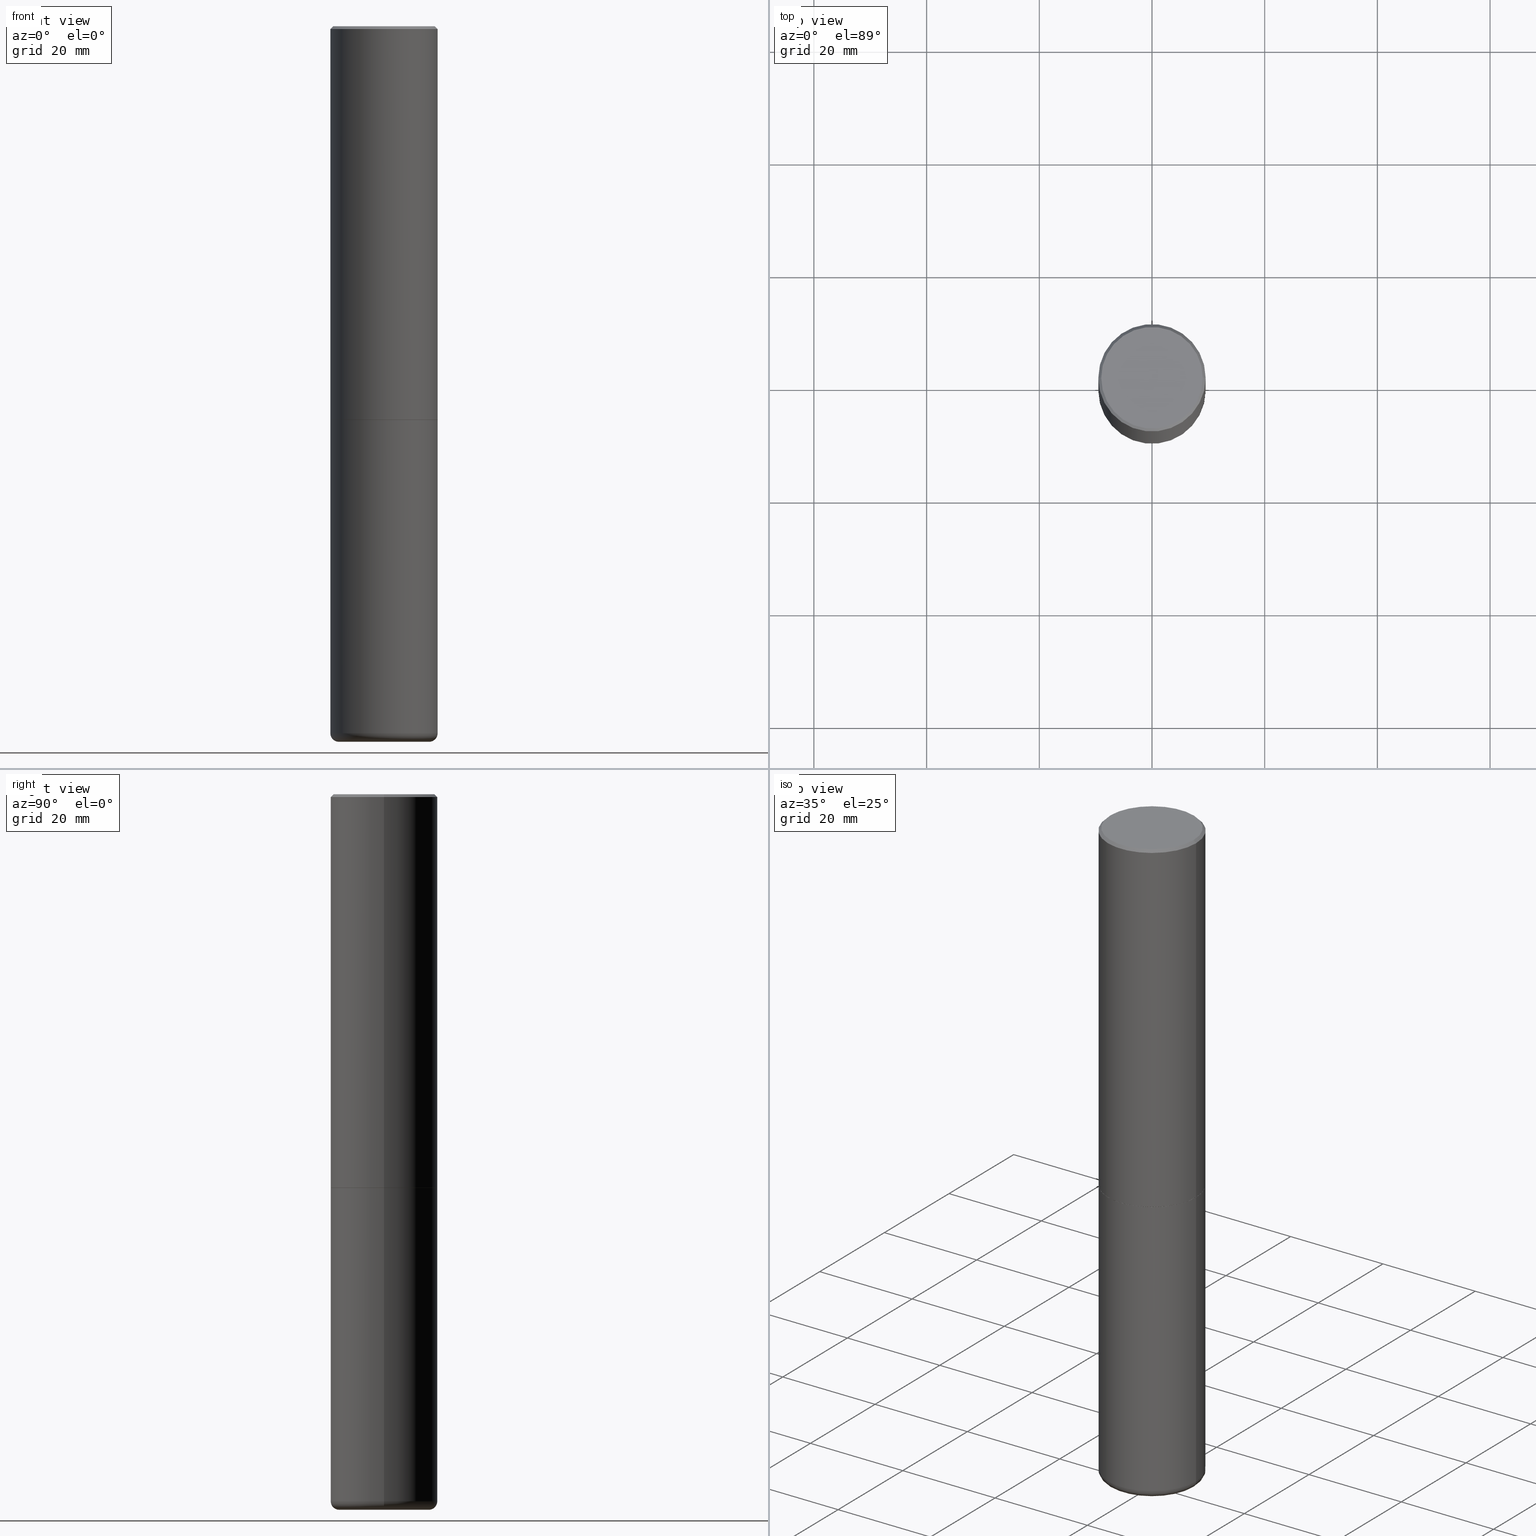
[diagram: canonical four-view strip — front | top / right | iso, engineering-drawing reading convention]
A machine part, canonical four-view strip (front | top / right | iso — engineering-drawing reading convention). The complete STEP part file that produces these views, byte-faithful:
ISO-10303-21;
HEADER;
FILE_DESCRIPTION (( 'STEP AP203' ),
    '1' );
FILE_NAME ('35636.STEP',
    '2022-11-02T20:32:23',
    ( '' ),
    ( '' ),
    'SwSTEP 2.0',
    'SolidWorks 2022',
    '' );
FILE_SCHEMA (( 'CONFIG_CONTROL_DESIGN' ));
ENDSEC;

DATA;
#1 = DIRECTION ( 'NONE',  ( -1.000000000000000000, 6.982962677686265133E-15, 0.000000000000000000 ) ) ;
#2 = DIRECTION ( 'NONE',  ( -2.445468806185136597E-29, 3.491481338843145583E-15, 1.000000000000000000 ) ) ;
#3 = VERTEX_POINT ( 'NONE', #130 ) ;
#4 = CIRCLE ( 'NONE', #378, 0.05999999999999963002 ) ;
#5 = CC_DESIGN_APPROVAL ( #245, ( #440 ) ) ;
#6 = LINE ( 'NONE', #305, #300 ) ;
#7 = CARTESIAN_POINT ( 'NONE',  ( 4.890937612370324831E-31, -6.982962677686364332E-17, -0.02000000000000020858 ) ) ;
#8 = ORIENTED_EDGE ( 'NONE', *, *, #425, .F. ) ;
#9 = CARTESIAN_POINT ( 'NONE',  ( 0.3750000000000000555, -1.221669320461216002E-14, -2.749000000000000554 ) ) ;
#10 = DIRECTION ( 'NONE',  ( 1.000000000000000000, -6.982962677686266711E-15, 0.000000000000000000 ) ) ;
#11 = ORIENTED_EDGE ( 'NONE', *, *, #170, .F. ) ;
#12 = DIRECTION ( 'NONE',  ( 1.000000000000000000, -6.982962677686263555E-15, 0.000000000000000000 ) ) ;
#13 = CONICAL_SURFACE ( 'NONE', #290, 0.3749999999999991673, 0.7853981633974445042 ) ;
#14 = LOCAL_TIME ( 16, 32, 23.00000000000000000, #439 ) ;
#15 = PLANE ( 'NONE',  #334 ) ;
#16 = ORIENTED_EDGE ( 'NONE', *, *, #436, .T. ) ;
#17 =( LENGTH_UNIT ( ) NAMED_UNIT ( * ) SI_UNIT ( $, .METRE. ) );
#18 = APPLICATION_CONTEXT ( 'configuration controlled 3d designs of mechanical parts and assemblies' ) ;
#19 = CIRCLE ( 'NONE', #146, 0.2744789078700981544 ) ;
#20 = ORIENTED_EDGE ( 'NONE', *, *, #145, .T. ) ;
#21 = APPROVAL_DATE_TIME ( #332, #384 ) ;
#22 = VERTEX_POINT ( 'NONE', #38 ) ;
#23 = CC_DESIGN_PERSON_AND_ORGANIZATION_ASSIGNMENT ( #68, #451, ( #440 ) ) ;
#24 = CARTESIAN_POINT ( 'NONE',  ( 0.000000000000000000, 0.000000000000000000, 0.000000000000000000 ) ) ;
#25 = APPROVAL_ROLE ( '' ) ;
#26 = EDGE_CURVE ( 'NONE', #94, #3, #89, .T. ) ;
#27 = DIRECTION ( 'NONE',  ( -0.7071067811870063169, 7.493145998872012346E-15, 0.7071067811860887176 ) ) ;
#28 = AXIS2_PLACEMENT_3D ( 'NONE', #367, #442, #264 ) ;
#29 = AXIS2_PLACEMENT_3D ( 'NONE', #350, #240, #10 ) ;
#30 = ORIENTED_EDGE ( 'NONE', *, *, #170, .T. ) ;
#31 = CARTESIAN_POINT ( 'NONE',  ( -0.3739999999999999991, -6.944143850075873593E-15, -2.749999999999999556 ) ) ;
#32 = EDGE_CURVE ( 'NONE', #75, #208, #485, .T. ) ;
#33 = DIRECTION ( 'NONE',  ( 2.445468806185136597E-29, -3.491481338843145583E-15, -1.000000000000000000 ) ) ;
#34 = CARTESIAN_POINT ( 'NONE',  ( 0.3749999999999995559, -2.618611004132346467E-15, 1.828566290923473680E-29 ) ) ;
#35 = CARTESIAN_POINT ( 'NONE',  ( 0.3750000000000000555, -1.222018468595100145E-14, -2.750000000000000000 ) ) ;
#36 = CARTESIAN_POINT ( 'NONE',  ( 1.220403409617714144E-28, -1.742131362950113227E-14, -4.990065932433461526 ) ) ;
#37 = AXIS2_PLACEMENT_3D ( 'NONE', #463, #430, #156 ) ;
#38 = CARTESIAN_POINT ( 'NONE',  ( -0.3144764078700981735, -1.490315397694742864E-14, -5.000000000000000000 ) ) ;
#39 = CARTESIAN_POINT ( 'NONE',  ( 1.208062148951210544E-28, -1.724792579057979243E-14, -4.940002284616149986 ) ) ;
#40 = EDGE_LOOP ( 'NONE', ( #131, #243, #261, #90 ) ) ;
#41 = EDGE_CURVE ( 'NONE', #208, #394, #438, .T. ) ;
#42 = CIRCLE ( 'NONE', #275, 0.3144764078700981735 ) ;
#43 = VECTOR ( 'NONE', #86, 39.37007874015748854 ) ;
#44 = DIRECTION ( 'NONE',  ( -2.445468806185136597E-29, 3.491481338843145583E-15, 1.000000000000000000 ) ) ;
#45 = DIRECTION ( 'NONE',  ( 1.000000000000000000, -6.982962677686263555E-15, 0.000000000000000000 ) ) ;
#46 = ORIENTED_EDGE ( 'NONE', *, *, #287, .F. ) ;
#47 = FACE_OUTER_BOUND ( 'NONE', #282, .T. ) ;
#48 = APPROVAL ( #134, 'UNSPECIFIED' ) ;
#49 = ORIENTED_EDGE ( 'NONE', *, *, #355, .T. ) ;
#50 = CARTESIAN_POINT ( 'NONE',  ( 6.725039217009123399E-29, -9.601573681818648281E-15, -2.749999999999999556 ) ) ;
#51 = VERTEX_POINT ( 'NONE', #35 ) ;
#52 = CARTESIAN_POINT ( 'NONE',  ( -0.3549999999999990941, 2.513866563967049153E-15, 4.268512490082953109E-18 ) ) ;
#53 = CARTESIAN_POINT ( 'NONE',  ( -0.3750000000000000555, -1.076021447709884624E-14, -2.750000000000000000 ) ) ;
#54 = ORIENTED_EDGE ( 'NONE', *, *, #26, .T. ) ;
#55 = MANIFOLD_SOLID_BREP ( 'Body-Move/Copy2[2]', #184 ) ;
#56 = CONICAL_SURFACE ( 'NONE', #294, 0.3739999999999999991, 0.7853981633980972044 ) ;
#57 = VECTOR ( 'NONE', #111, 39.37007874015748143 ) ;
#58 = EDGE_LOOP ( 'NONE', ( #106, #310, #233, #8 ) ) ;
#59 = EDGE_CURVE ( 'NONE', #304, #51, #98, .T. ) ;
#60 = DIRECTION ( 'NONE',  ( -1.000000000000000000, 6.982962677686265133E-15, 0.000000000000000000 ) ) ;
#61 = PERSON_AND_ORGANIZATION_ROLE ( 'creator' ) ;
#62 = AXIS2_PLACEMENT_3D ( 'NONE', #220, #96, #60 ) ;
#63 = AXIS2_PLACEMENT_3D ( 'NONE', #66, #226, #491 ) ;
#64 = PERSON_AND_ORGANIZATION ( #218, #178 ) ;
#65 = FACE_OUTER_BOUND ( 'NONE', #331, .T. ) ;
#66 = CARTESIAN_POINT ( 'NONE',  ( 6.725039217009124520E-29, -9.601573681818649859E-15, -2.750000000000000000 ) ) ;
#67 = DIRECTION ( 'NONE',  ( 1.000000000000000000, -6.982962677686273810E-15, 0.000000000000000000 ) ) ;
#68 = PERSON_AND_ORGANIZATION ( #218, #178 ) ;
#69 = CIRCLE ( 'NONE', #29, 0.3749999999999991673 ) ;
#70 = DIRECTION ( 'NONE',  ( -0.9999619230641714207, 6.952228252019235511E-15, -0.008726535498355246501 ) ) ;
#71 = EDGE_CURVE ( 'NONE', #22, #428, #257, .T. ) ;
#72 = ORIENTED_EDGE ( 'NONE', *, *, #145, .F. ) ;
#73 = DIRECTION ( 'NONE',  ( -2.445468806185136877E-29, 3.491481338843145188E-15, 1.000000000000000000 ) ) ;
#74 = DIRECTION ( 'NONE',  ( -2.445468806185136597E-29, 3.491481338843145583E-15, 1.000000000000000000 ) ) ;
#75 = VERTEX_POINT ( 'NONE', #105 ) ;
#76 = CARTESIAN_POINT ( 'NONE',  ( 1.222734403092568523E-28, -1.745740669421572989E-14, -5.000000000000000000 ) ) ;
#77 = DIRECTION ( 'NONE',  ( -2.445468806185136597E-29, 3.491481338843145583E-15, 1.000000000000000000 ) ) ;
#78 = ORIENTED_EDGE ( 'NONE', *, *, #325, .F. ) ;
#79 = CIRCLE ( 'NONE', #93, 0.3739999999999999991 ) ;
#80 = DIRECTION ( 'NONE',  ( -1.000000000000000000, 6.982962677686265922E-15, -4.876176775795935793E-29 ) ) ;
#81 = ADVANCED_FACE ( 'NONE', ( #65 ), #351, .T. ) ;
#82 = CARTESIAN_POINT ( 'NONE',  ( 6.725039217009124520E-29, -9.601573681818649859E-15, -2.750000000000000000 ) ) ;
#83 = ORIENTED_EDGE ( 'NONE', *, *, #288, .T. ) ;
#84 = DIRECTION ( 'NONE',  ( 1.000000000000000000, -6.982962677686265133E-15, 0.000000000000000000 ) ) ;
#85 =( NAMED_UNIT ( * ) SI_UNIT ( $, .STERADIAN. ) SOLID_ANGLE_UNIT ( ) );
#86 = DIRECTION ( 'NONE',  ( -0.7071067811865447972, 2.468850131082228662E-15, -0.7071067811865501263 ) ) ;
#87 = DATE_AND_TIME ( #152, #477 ) ;
#88 = VERTEX_POINT ( 'NONE', #260 ) ;
#89 = CIRCLE ( 'NONE', #28, 0.2744789078700981544 ) ;
#90 = ORIENTED_EDGE ( 'NONE', *, *, #32, .F. ) ;
#91 = APPLICATION_PROTOCOL_DEFINITION ( 'international standard', 'config_control_design', 1994, #118 ) ;
#92 = FACE_OUTER_BOUND ( 'NONE', #251, .T. ) ;
#93 = AXIS2_PLACEMENT_3D ( 'NONE', #160, #166, #84 ) ;
#94 = VERTEX_POINT ( 'NONE', #399 ) ;
#95 = EDGE_CURVE ( 'NONE', #198, #22, #42, .T. ) ;
#96 = DIRECTION ( 'NONE',  ( 2.445468806185136597E-29, -3.491481338843145583E-15, -1.000000000000000000 ) ) ;
#97 = DIRECTION ( 'NONE',  ( 1.000000000000000000, -6.982962677686265133E-15, 4.876176775795935793E-29 ) ) ;
#98 = LINE ( 'NONE', #179, #265 ) ;
#99 = PRODUCT_DEFINITION_SHAPE ( 'NONE', 'NONE',  #324 ) ;
#100 = DATE_TIME_ROLE ( 'creation_date' ) ;
#101 = DIRECTION ( 'NONE',  ( -2.445468806185136877E-29, 3.491481338843145188E-15, 1.000000000000000000 ) ) ;
#102 = AXIS2_PLACEMENT_3D ( 'NONE', #299, #144, #222 ) ;
#103 = APPROVAL_DATE_TIME ( #337, #245 ) ;
#104 = CC_DESIGN_DATE_AND_TIME_ASSIGNMENT ( #87, #132, ( #426 ) ) ;
#105 = CARTESIAN_POINT ( 'NONE',  ( 0.3739999999999999991, -1.221320172327331228E-14, -2.749999999999999556 ) ) ;
#106 = ORIENTED_EDGE ( 'NONE', *, *, #169, .T. ) ;
#107 = FACE_OUTER_BOUND ( 'NONE', #348, .T. ) ;
#108 = CARTESIAN_POINT ( 'NONE',  ( -0.3749999999999991673, 2.548781377355480407E-15, -0.02000000000000020858 ) ) ;
#109 = DIRECTION ( 'NONE',  ( 1.000000000000000000, -6.982962677686263555E-15, 4.883557194083111219E-29 ) ) ;
#110 = CC_DESIGN_DATE_AND_TIME_ASSIGNMENT ( #359, #100, ( #324 ) ) ;
#111 = DIRECTION ( 'NONE',  ( 0.9993908270190957621, -6.978169709227539121E-15, -0.03489949670250019204 ) ) ;
#112 = CARTESIAN_POINT ( 'NONE',  ( 0.2744789078700981544, -1.933924998042177754E-14, -4.999650947105539700 ) ) ;
#113 = CIRCLE ( 'NONE', #250, 0.3750000000000000555 ) ;
#114 = ADVANCED_FACE ( 'NONE', ( #256 ), #153, .T. ) ;
#115 = CARTESIAN_POINT ( 'NONE',  ( -1.043851414335219820E-46, 1.490343170380447200E-32, 4.268512490100411279E-18 ) ) ;
#116 = ORIENTED_EDGE ( 'NONE', *, *, #169, .F. ) ;
#117 = CARTESIAN_POINT ( 'NONE',  ( 0.3150000000000003353, -1.944755903405096897E-14, -4.940002284616149986 ) ) ;
#118 = APPLICATION_CONTEXT ( 'configuration controlled 3d designs of mechanical parts and assemblies' ) ;
#119 = ADVANCED_FACE ( 'NONE', ( #371 ), #413, .T. ) ;
#120 = CARTESIAN_POINT ( 'NONE',  ( 4.890937612370324831E-31, -6.982962677686364332E-17, -0.02000000000000020858 ) ) ;
#121 = ORIENTED_EDGE ( 'NONE', *, *, #288, .F. ) ;
#122 = AXIS2_PLACEMENT_3D ( 'NONE', #340, #2, #302 ) ;
#123 = EDGE_LOOP ( 'NONE', ( #431, #235 ) ) ;
#124 = FACE_OUTER_BOUND ( 'NONE', #320, .T. ) ;
#125 = DIRECTION ( 'NONE',  ( -2.445468806185136597E-29, 3.491481338843145583E-15, 1.000000000000000000 ) ) ;
#126 = ORIENTED_EDGE ( 'NONE', *, *, #452, .F. ) ;
#127 = DIRECTION ( 'NONE',  ( -2.445468806185136597E-29, 3.491481338843145583E-15, 1.000000000000000000 ) ) ;
#128 = ADVANCED_FACE ( 'NONE', ( #188 ), #283, .F. ) ;
#129 = LOCAL_TIME ( 16, 32, 23.00000000000000000, #177 ) ;
#130 = CARTESIAN_POINT ( 'NONE',  ( -0.2744789078700981544, -1.553951201307947038E-14, -4.999650947105539700 ) ) ;
#131 = ORIENTED_EDGE ( 'NONE', *, *, #210, .T. ) ;
#132 = DATE_TIME_ROLE ( 'classification_date' ) ;
#133 = EDGE_CURVE ( 'NONE', #159, #394, #445, .T. ) ;
#134 = APPROVAL_STATUS ( 'not_yet_approved' ) ;
#135 = VECTOR ( 'NONE', #70, 39.37007874015748854 ) ;
#136 = DIRECTION ( 'NONE',  ( -2.445468806185136597E-29, 3.491481338843145583E-15, 1.000000000000000000 ) ) ;
#137 = ORIENTED_EDGE ( 'NONE', *, *, #443, .T. ) ;
#138 = CALENDAR_DATE ( 2022, 2, 11 ) ;
#139 = EDGE_CURVE ( 'NONE', #394, #349, #329, .T. ) ;
#140 = CARTESIAN_POINT ( 'NONE',  ( -0.3749999999999995559, 2.664535259100372542E-15, -1.844600658845587356E-29 ) ) ;
#141 = CARTESIAN_POINT ( 'NONE',  ( 6.725039217009124520E-29, -9.601573681818649859E-15, -2.750000000000000000 ) ) ;
#142 = CARTESIAN_POINT ( 'NONE',  ( -0.3749999999999999445, 2.664535259100375303E-15, -1.844600658845589318E-29 ) ) ;
#143 = DIRECTION ( 'NONE',  ( 1.000000000000000000, -6.982962677686266711E-15, 0.000000000000000000 ) ) ;
#144 = DIRECTION ( 'NONE',  ( 2.438088387897960049E-29, -3.491481338843145188E-15, -1.000000000000000000 ) ) ;
#145 = EDGE_CURVE ( 'NONE', #428, #162, #482, .T. ) ;
#146 = AXIS2_PLACEMENT_3D ( 'NONE', #167, #456, #368 ) ;
#147 = CARTESIAN_POINT ( 'NONE',  ( 0.3739999999999999991, -1.221320172327331228E-14, -2.749999999999999556 ) ) ;
#148 = AXIS2_PLACEMENT_3D ( 'NONE', #50, #204, #376 ) ;
#149 = CIRCLE ( 'NONE', #122, 0.3549999999999990941 ) ;
#150 = CC_DESIGN_PERSON_AND_ORGANIZATION_ASSIGNMENT ( #176, #61, ( #324 ) ) ;
#151 = DIRECTION ( 'NONE',  ( -2.445468806185136597E-29, 3.491481338843145583E-15, 1.000000000000000000 ) ) ;
#152 = CALENDAR_DATE ( 2022, 2, 11 ) ;
#153 = CYLINDRICAL_SURFACE ( 'NONE', #171, 0.3749999999999999445 ) ;
#154 = CARTESIAN_POINT ( 'NONE',  ( 0.3144764078700981735, -1.961487146075492224E-14, -5.000000000000000000 ) ) ;
#155 = ADVANCED_FACE ( 'NONE', ( #259 ), #56, .T. ) ;
#156 = DIRECTION ( 'NONE',  ( 1.000000000000000000, -6.982962677686266711E-15, 4.876176775795935793E-29 ) ) ;
#157 = FACE_OUTER_BOUND ( 'NONE', #209, .T. ) ;
#158 = EDGE_CURVE ( 'NONE', #304, #428, #212, .T. ) ;
#159 = VERTEX_POINT ( 'NONE', #385 ) ;
#160 = CARTESIAN_POINT ( 'NONE',  ( 6.725039217009123399E-29, -9.601573681818648281E-15, -2.749999999999999556 ) ) ;
#161 = CARTESIAN_POINT ( 'NONE',  ( 0.000000000000000000, 0.000000000000000000, 0.000000000000000000 ) ) ;
#162 = VERTEX_POINT ( 'NONE', #53 ) ;
#163 = ORIENTED_EDGE ( 'NONE', *, *, #158, .F. ) ;
#164 = DIRECTION ( 'NONE',  ( 2.438088387897960049E-29, -3.491481338843145188E-15, -1.000000000000000000 ) ) ;
#165 = VECTOR ( 'NONE', #241, 39.37007874015748143 ) ;
#166 = DIRECTION ( 'NONE',  ( -2.445468806185136597E-29, 3.491481338843145583E-15, 1.000000000000000000 ) ) ;
#167 = CARTESIAN_POINT ( 'NONE',  ( 1.222649043296057309E-28, -1.745618798254845354E-14, -4.999650947105539700 ) ) ;
#168 = ORIENTED_EDGE ( 'NONE', *, *, #247, .T. ) ;
#169 = EDGE_CURVE ( 'NONE', #3, #94, #19, .T. ) ;
#170 = EDGE_CURVE ( 'NONE', #394, #208, #421, .T. ) ;
#171 = AXIS2_PLACEMENT_3D ( 'NONE', #402, #254, #229 ) ;
#172 = DIRECTION ( 'NONE',  ( -2.445468806185136597E-29, 3.491481338843145583E-15, 1.000000000000000000 ) ) ;
#173 = PERSON_AND_ORGANIZATION ( #218, #178 ) ;
#174 = FACE_OUTER_BOUND ( 'NONE', #123, .T. ) ;
#175 = ORIENTED_EDGE ( 'NONE', *, *, #490, .F. ) ;
#176 = PERSON_AND_ORGANIZATION ( #218, #178 ) ;
#177 = COORDINATED_UNIVERSAL_TIME_OFFSET ( 5, 0, .BEHIND. ) ;
#178 = ORGANIZATION ( 'UNSPECIFIED', 'UNSPECIFIED', '' ) ;
#179 = CARTESIAN_POINT ( 'NONE',  ( 0.3749999999999999445, -2.618611004132349622E-15, 1.828566290923475642E-29 ) ) ;
#180 = CC_DESIGN_APPROVAL ( #48, ( #426 ) ) ;
#181 = PRODUCT ( '35636', '35636', '', ( #228 ) ) ;
#182 = DIRECTION ( 'NONE',  ( 0.000000000000000000, 0.000000000000000000, 1.000000000000000000 ) ) ;
#183 = CARTESIAN_POINT ( 'NONE',  ( -0.3750000000000000555, -2.169420654527954251E-15, -2.749000000000000554 ) ) ;
#184 = CLOSED_SHELL ( 'NONE', ( #271, #453, #279, #390, #472, #155, #444, #255 ) ) ;
#185 = DIRECTION ( 'NONE',  ( 7.105427357601001859E-15, 1.000000000000000000, -3.491481338843145583E-15 ) ) ;
#186 = AXIS2_PLACEMENT_3D ( 'NONE', #417, #44, #225 ) ;
#187 = LINE ( 'NONE', #34, #284 ) ;
#188 = FACE_OUTER_BOUND ( 'NONE', #469, .T. ) ;
#189 = DIRECTION ( 'NONE',  ( 2.445468806185136597E-29, -3.491481338843145583E-15, -1.000000000000000000 ) ) ;
#190 = FACE_OUTER_BOUND ( 'NONE', #416, .T. ) ;
#191 = PERSON_AND_ORGANIZATION ( #218, #178 ) ;
#192 = DIRECTION ( 'NONE',  ( -2.445468806185136597E-29, 3.491481338843145583E-15, 1.000000000000000000 ) ) ;
#193 = EDGE_LOOP ( 'NONE', ( #319, #307, #342, #11 ) ) ;
#194 = FACE_OUTER_BOUND ( 'NONE', #248, .T. ) ;
#195 = CIRCLE ( 'NONE', #63, 0.3750000000000000555 ) ;
#196 = ORIENTED_EDGE ( 'NONE', *, *, #420, .F. ) ;
#197 = DIRECTION ( 'NONE',  ( 2.445468806185136597E-29, -3.491481338843145583E-15, -1.000000000000000000 ) ) ;
#198 = VERTEX_POINT ( 'NONE', #313 ) ;
#199 = APPLICATION_PROTOCOL_DEFINITION ( 'international standard', 'config_control_design', 1994, #18 ) ;
#200 = CARTESIAN_POINT ( 'NONE',  ( 1.222649043296057309E-28, -1.745618798254845354E-14, -4.999650947105539700 ) ) ;
#201 = DESIGN_CONTEXT ( 'detailed design', #18, 'design' ) ;
#202 = CARTESIAN_POINT ( 'NONE',  ( 0.3549999999999990941, -2.538996582575035132E-15, 4.268512490117958041E-18 ) ) ;
#203 = ORIENTED_EDGE ( 'NONE', *, *, #406, .F. ) ;
#204 = DIRECTION ( 'NONE',  ( -2.445468806185136597E-29, 3.491481338843145583E-15, 1.000000000000000000 ) ) ;
#205 = AXIS2_PLACEMENT_3D ( 'NONE', #338, #478, #492 ) ;
#206 = AXIS2_PLACEMENT_3D ( 'NONE', #479, #172, #252 ) ;
#207 = ORIENTED_EDGE ( 'NONE', *, *, #26, .F. ) ;
#208 = VERTEX_POINT ( 'NONE', #9 ) ;
#209 = EDGE_LOOP ( 'NONE', ( #308, #78 ) ) ;
#210 = EDGE_CURVE ( 'NONE', #75, #159, #79, .T. ) ;
#211 = CALENDAR_DATE ( 2022, 2, 11 ) ;
#212 = CIRCLE ( 'NONE', #356, 0.3749999999999999445 ) ;
#213 = CONICAL_SURFACE ( 'NONE', #362, 0.3144764078700981735, 1.562069680534943661 ) ;
#214 = EDGE_CURVE ( 'NONE', #375, #3, #236, .T. ) ;
#215 = APPROVAL_PERSON_ORGANIZATION ( #173, #48, #400 ) ;
#216 = ORIENTED_EDGE ( 'NONE', *, *, #41, .T. ) ;
#217 = ORIENTED_EDGE ( 'NONE', *, *, #436, .F. ) ;
#218 = PERSON ( 'UNSPECIFIED', 'UNSPECIFIED', 'UNSPECIFIED', ('UNSPECIFIED'), ('UNSPECIFIED'), ('UNSPECIFIED') ) ;
#219 = AXIS2_PLACEMENT_3D ( 'NONE', #7, #77, #237 ) ;
#220 = CARTESIAN_POINT ( 'NONE',  ( 1.222649043296057309E-28, -1.745618798254845354E-14, -4.999650947105539700 ) ) ;
#221 = ADVANCED_FACE ( 'NONE', ( #194 ), #379, .T. ) ;
#222 = DIRECTION ( 'NONE',  ( -1.000000000000000000, 6.982962677686265922E-15, -4.876176775795935793E-29 ) ) ;
#223 = APPROVAL_STATUS ( 'not_yet_approved' ) ;
#224 = CARTESIAN_POINT ( 'NONE',  ( 1.222734403092568523E-28, -1.745740669421572989E-14, -5.000000000000000000 ) ) ;
#225 = DIRECTION ( 'NONE',  ( 1.000000000000000000, -6.982962677686265133E-15, 0.000000000000000000 ) ) ;
#226 = DIRECTION ( 'NONE',  ( -2.445468806185136597E-29, 3.491481338843145583E-15, 1.000000000000000000 ) ) ;
#227 = CC_DESIGN_PERSON_AND_ORGANIZATION_ASSIGNMENT ( #457, #263, ( #426 ) ) ;
#228 = MECHANICAL_CONTEXT ( 'NONE', #118, 'mechanical' ) ;
#229 = DIRECTION ( 'NONE',  ( 1.000000000000000000, -6.982962677686266711E-15, 4.876176775795935793E-29 ) ) ;
#230 = AXIS2_PLACEMENT_3D ( 'NONE', #224, #189, #454 ) ;
#231 = DIRECTION ( 'NONE',  ( -1.000000000000000000, 6.982962677686266711E-15, 0.000000000000000000 ) ) ;
#232 = DIRECTION ( 'NONE',  ( 1.000000000000000000, -6.982962677686265133E-15, 0.000000000000000000 ) ) ;
#233 = ORIENTED_EDGE ( 'NONE', *, *, #481, .F. ) ;
#234 = CARTESIAN_POINT ( 'NONE',  ( 6.722593748202942280E-29, -9.598082200479810007E-15, -2.749000000000000554 ) ) ;
#235 = ORIENTED_EDGE ( 'NONE', *, *, #490, .T. ) ;
#236 = LINE ( 'NONE', #468, #165 ) ;
#237 = DIRECTION ( 'NONE',  ( 1.000000000000000000, -6.982962677686266711E-15, 0.000000000000000000 ) ) ;
#238 = EDGE_CURVE ( 'NONE', #364, #349, #318, .T. ) ;
#239 = ORIENTED_EDGE ( 'NONE', *, *, #315, .F. ) ;
#240 = DIRECTION ( 'NONE',  ( -2.445468806185136597E-29, 3.491481338843145583E-15, 1.000000000000000000 ) ) ;
#241 = DIRECTION ( 'NONE',  ( -0.9993908270190957621, 6.856857904024558837E-15, -0.03489949670250019204 ) ) ;
#242 = CLOSED_SHELL ( 'NONE', ( #297, #81, #221, #311, #128, #366, #114, #119, #372 ) ) ;
#243 = ORIENTED_EDGE ( 'NONE', *, *, #133, .T. ) ;
#244 = AXIS2_PLACEMENT_3D ( 'NONE', #419, #164, #80 ) ;
#245 = APPROVAL ( #223, 'UNSPECIFIED' ) ;
#246 = LENGTH_MEASURE_WITH_UNIT ( LENGTH_MEASURE( 0.02539999999999999897 ), #17 );
#247 = EDGE_CURVE ( 'NONE', #428, #304, #322, .T. ) ;
#248 = EDGE_LOOP ( 'NONE', ( #317, #20, #203, #383 ) ) ;
#249 = CYLINDRICAL_SURFACE ( 'NONE', #327, 0.3749999999999995559 ) ;
#250 = AXIS2_PLACEMENT_3D ( 'NONE', #141, #434, #358 ) ;
#251 = EDGE_LOOP ( 'NONE', ( #418, #30, #49, #465 ) ) ;
#252 = DIRECTION ( 'NONE',  ( 1.000000000000000000, -6.982962677686273810E-15, 0.000000000000000000 ) ) ;
#253 = CC_DESIGN_PERSON_AND_ORGANIZATION_ASSIGNMENT ( #191, #333, ( #440 ) ) ;
#254 = DIRECTION ( 'NONE',  ( -2.445468806185136597E-29, 3.491481338843145583E-15, 1.000000000000000000 ) ) ;
#255 = ADVANCED_FACE ( 'NONE', ( #124 ), #272, .F. ) ;
#256 = FACE_OUTER_BOUND ( 'NONE', #476, .T. ) ;
#257 = CIRCLE ( 'NONE', #432, 0.05999999999999963002 ) ;
#258 = AXIS2_PLACEMENT_3D ( 'NONE', #161, #125, #397 ) ;
#259 = FACE_OUTER_BOUND ( 'NONE', #193, .T. ) ;
#260 = CARTESIAN_POINT ( 'NONE',  ( 0.3749999999999991673, -2.642516375941182112E-15, -0.02000000000000020858 ) ) ;
#261 = ORIENTED_EDGE ( 'NONE', *, *, #41, .F. ) ;
#262 = LINE ( 'NONE', #154, #352 ) ;
#263 = PERSON_AND_ORGANIZATION_ROLE ( 'classification_officer' ) ;
#264 = DIRECTION ( 'NONE',  ( 1.000000000000000000, -6.982962677686265133E-15, 0.000000000000000000 ) ) ;
#265 = VECTOR ( 'NONE', #449, 39.37007874015748143 ) ;
#266 = CONICAL_SURFACE ( 'NONE', #403, 0.2744789078700981544, 1.535889741755010807 ) ;
#267 = LINE ( 'NONE', #414, #135 ) ;
#268 = ORIENTED_EDGE ( 'NONE', *, *, #71, .T. ) ;
#269 = DIRECTION ( 'NONE',  ( 1.000000000000000000, -6.982962677686265133E-15, 4.876231632512000515E-29 ) ) ;
#270 = EDGE_LOOP ( 'NONE', ( #462, #461, #326, #323 ) ) ;
#271 = ADVANCED_FACE ( 'NONE', ( #278 ), #314, .T. ) ;
#272 = PLANE ( 'NONE',  #244 ) ;
#273 = DIRECTION ( 'NONE',  ( -6.982962677686266711E-15, -1.000000000000000000, 3.491481338843145583E-15 ) ) ;
#274 = CARTESIAN_POINT ( 'NONE',  ( 0.3749999999999999445, -1.986653679471214244E-14, -4.940002284616149986 ) ) ;
#275 = AXIS2_PLACEMENT_3D ( 'NONE', #293, #412, #67 ) ;
#276 = CONICAL_SURFACE ( 'NONE', #230, 0.3144764078700981735, 1.562069680534943661 ) ;
#277 = ORIENTED_EDGE ( 'NONE', *, *, #238, .T. ) ;
#278 = FACE_OUTER_BOUND ( 'NONE', #40, .T. ) ;
#279 = ADVANCED_FACE ( 'NONE', ( #281 ), #393, .T. ) ;
#280 = ORIENTED_EDGE ( 'NONE', *, *, #287, .T. ) ;
#281 = FACE_OUTER_BOUND ( 'NONE', #446, .T. ) ;
#282 = EDGE_LOOP ( 'NONE', ( #347, #471, #116 ) ) ;
#283 = CONICAL_SURFACE ( 'NONE', #62, 0.2744789078700981544, 1.535889741755010807 ) ;
#284 = VECTOR ( 'NONE', #73, 39.37007874015748143 ) ;
#285 = DATE_AND_TIME ( #437, #335 ) ;
#286 = ORIENTED_EDGE ( 'NONE', *, *, #425, .T. ) ;
#287 = EDGE_CURVE ( 'NONE', #360, #88, #6, .T. ) ;
#288 = EDGE_CURVE ( 'NONE', #88, #349, #69, .T. ) ;
#289 = ORIENTED_EDGE ( 'NONE', *, *, #139, .T. ) ;
#290 = AXIS2_PLACEMENT_3D ( 'NONE', #365, #33, #231 ) ;
#291 = DIRECTION ( 'NONE',  ( -2.445468806185136877E-29, 3.491481338843145188E-15, 1.000000000000000000 ) ) ;
#292 = CALENDAR_DATE ( 2022, 2, 11 ) ;
#293 = CARTESIAN_POINT ( 'NONE',  ( 1.222734403092568523E-28, -1.745740669421572989E-14, -5.000000000000000000 ) ) ;
#294 = AXIS2_PLACEMENT_3D ( 'NONE', #405, #373, #232 ) ;
#295 =( GEOMETRIC_REPRESENTATION_CONTEXT ( 3 ) GLOBAL_UNCERTAINTY_ASSIGNED_CONTEXT ( ( #470 ) ) GLOBAL_UNIT_ASSIGNED_CONTEXT ( ( #473, #388, #85 ) ) REPRESENTATION_CONTEXT ( 'NONE', 'WORKASPACE' ) );
#296 = CARTESIAN_POINT ( 'NONE',  ( 6.722593748202942280E-29, -9.598082200479810007E-15, -2.749000000000000554 ) ) ;
#297 = ADVANCED_FACE ( 'NONE', ( #381 ), #213, .F. ) ;
#298 = CARTESIAN_POINT ( 'NONE',  ( -0.3150000000000003353, -1.500971617293547722E-14, -4.940002284616149986 ) ) ;
#299 = CARTESIAN_POINT ( 'NONE',  ( 2.618611004132417464E-15, 0.3749999999999903966, -2.750000000000000888 ) ) ;
#300 = VECTOR ( 'NONE', #458, 39.37007874015748854 ) ;
#301 = CC_DESIGN_APPROVAL ( #384, ( #324 ) ) ;
#302 = DIRECTION ( 'NONE',  ( 1.000000000000000000, -6.982962677686265133E-15, 4.876231632512000515E-29 ) ) ;
#303 = SECURITY_CLASSIFICATION_LEVEL ( 'unclassified' ) ;
#304 = VERTEX_POINT ( 'NONE', #274 ) ;
#305 = CARTESIAN_POINT ( 'NONE',  ( 0.3749999999999991673, -2.642516375941182112E-15, -0.02000000000000020858 ) ) ;
#306 = DIRECTION ( 'NONE',  ( -2.438088387897960049E-29, 3.491481338843145188E-15, 1.000000000000000000 ) ) ;
#307 = ORIENTED_EDGE ( 'NONE', *, *, #325, .T. ) ;
#308 = ORIENTED_EDGE ( 'NONE', *, *, #210, .F. ) ;
#309 = DIRECTION ( 'NONE',  ( 2.445468806185136597E-29, -3.491481338843145583E-15, -1.000000000000000000 ) ) ;
#310 = ORIENTED_EDGE ( 'NONE', *, *, #396, .T. ) ;
#311 = ADVANCED_FACE ( 'NONE', ( #47 ), #266, .F. ) ;
#312 = ORIENTED_EDGE ( 'NONE', *, *, #95, .T. ) ;
#313 = CARTESIAN_POINT ( 'NONE',  ( 0.3144764078700981735, -1.965338371338547073E-14, -5.000000000000000000 ) ) ;
#314 = CONICAL_SURFACE ( 'NONE', #148, 0.3739999999999999991, 0.7853981633980972044 ) ;
#315 = EDGE_CURVE ( 'NONE', #364, #360, #488, .T. ) ;
#316 = DIRECTION ( 'NONE',  ( 1.000000000000000000, -6.982962677686246200E-15, 0.000000000000000000 ) ) ;
#317 = ORIENTED_EDGE ( 'NONE', *, *, #158, .T. ) ;
#318 = LINE ( 'NONE', #460, #43 ) ;
#319 = ORIENTED_EDGE ( 'NONE', *, *, #133, .F. ) ;
#320 = EDGE_LOOP ( 'NONE', ( #484, #16 ) ) ;
#321 = VECTOR ( 'NONE', #27, 39.37007874015748143 ) ;
#322 = CIRCLE ( 'NONE', #424, 0.3749999999999999445 ) ;
#323 = ORIENTED_EDGE ( 'NONE', *, *, #247, .F. ) ;
#324 = PRODUCT_DEFINITION ( 'UNKNOWN', '', #440, #201 ) ;
#325 = EDGE_CURVE ( 'NONE', #159, #75, #343, .T. ) ;
#326 = ORIENTED_EDGE ( 'NONE', *, *, #452, .T. ) ;
#327 = AXIS2_PLACEMENT_3D ( 'NONE', #24, #136, #97 ) ;
#328 = CARTESIAN_POINT ( 'NONE',  ( 0.000000000000000000, 0.000000000000000000, 0.000000000000000000 ) ) ;
#329 = LINE ( 'NONE', #140, #392 ) ;
#330 = DIRECTION ( 'NONE',  ( 1.000000000000000000, 0.000000000000000000, 0.000000000000000000 ) ) ;
#331 = EDGE_LOOP ( 'NONE', ( #312, #268, #163, #126 ) ) ;
#332 = DATE_AND_TIME ( #211, #14 ) ;
#333 = PERSON_AND_ORGANIZATION_ROLE ( 'design_supplier' ) ;
#334 = AXIS2_PLACEMENT_3D ( 'NONE', #82, #306, #459 ) ;
#335 = LOCAL_TIME ( 16, 32, 23.00000000000000000, #354 ) ;
#336 = DIRECTION ( 'NONE',  ( -1.000000000000000000, 7.105427357601001859E-15, 0.000000000000000000 ) ) ;
#337 = DATE_AND_TIME ( #138, #129 ) ;
#338 = CARTESIAN_POINT ( 'NONE',  ( 1.208062148951210544E-28, -1.724792579057979243E-14, -4.940002284616149986 ) ) ;
#339 = LINE ( 'NONE', #112, #57 ) ;
#340 = CARTESIAN_POINT ( 'NONE',  ( -1.043851414335219820E-46, 1.490343170380447200E-32, 4.268512490100411279E-18 ) ) ;
#341 = VECTOR ( 'NONE', #407, 39.37007874015748143 ) ;
#342 = ORIENTED_EDGE ( 'NONE', *, *, #32, .T. ) ;
#343 = CIRCLE ( 'NONE', #186, 0.3739999999999999991 ) ;
#344 = DIRECTION ( 'NONE',  ( -1.000000000000000000, 6.982962677686266711E-15, 0.000000000000000000 ) ) ;
#345 = DIRECTION ( 'NONE',  ( -1.000000000000000000, 6.982962677686267499E-15, 0.000000000000000000 ) ) ;
#346 = CYLINDRICAL_SURFACE ( 'NONE', #258, 0.3749999999999995559 ) ;
#347 = ORIENTED_EDGE ( 'NONE', *, *, #214, .F. ) ;
#348 = EDGE_LOOP ( 'NONE', ( #380, #54, #286, #450 ) ) ;
#349 = VERTEX_POINT ( 'NONE', #108 ) ;
#350 = CARTESIAN_POINT ( 'NONE',  ( 4.890937612370324831E-31, -6.982962677686364332E-17, -0.02000000000000020858 ) ) ;
#351 = TOROIDAL_SURFACE ( 'NONE', #361, 0.3150000000000003353, 0.05999999999999961614 ) ;
#352 = VECTOR ( 'NONE', #410, 39.37007874015748854 ) ;
#353 = PERSON_AND_ORGANIZATION_ROLE ( 'design_owner' ) ;
#354 = COORDINATED_UNIVERSAL_TIME_OFFSET ( 5, 0, .BEHIND. ) ;
#355 = EDGE_CURVE ( 'NONE', #208, #88, #187, .T. ) ;
#356 = AXIS2_PLACEMENT_3D ( 'NONE', #39, #74, #12 ) ;
#357 = APPROVAL_DATE_TIME ( #285, #48 ) ;
#358 = DIRECTION ( 'NONE',  ( 1.000000000000000000, -6.982962677686266711E-15, 0.000000000000000000 ) ) ;
#359 = DATE_AND_TIME ( #292, #387 ) ;
#360 = VERTEX_POINT ( 'NONE', #202 ) ;
#361 = AXIS2_PLACEMENT_3D ( 'NONE', #489, #151, #109 ) ;
#362 = AXIS2_PLACEMENT_3D ( 'NONE', #76, #197, #345 ) ;
#363 = DIRECTION ( 'NONE',  ( -2.445468806185136597E-29, 3.491481338843145583E-15, 1.000000000000000000 ) ) ;
#364 = VERTEX_POINT ( 'NONE', #52 ) ;
#365 = CARTESIAN_POINT ( 'NONE',  ( 4.890937612370324831E-31, -6.982962677686364332E-17, -0.02000000000000020858 ) ) ;
#366 = ADVANCED_FACE ( 'NONE', ( #174 ), #475, .F. ) ;
#367 = CARTESIAN_POINT ( 'NONE',  ( 1.222649043296057309E-28, -1.745618798254845354E-14, -4.999650947105539700 ) ) ;
#368 = DIRECTION ( 'NONE',  ( 1.000000000000000000, -6.982962677686265133E-15, 0.000000000000000000 ) ) ;
#369 = AXIS2_PLACEMENT_3D ( 'NONE', #115, #192, #269 ) ;
#370 = MANIFOLD_SOLID_BREP ( 'Body-Move/Copy2[1]', #242 ) ;
#371 = FACE_OUTER_BOUND ( 'NONE', #270, .T. ) ;
#372 = ADVANCED_FACE ( 'NONE', ( #107 ), #276, .F. ) ;
#373 = DIRECTION ( 'NONE',  ( -2.445468806185136597E-29, 3.491481338843145583E-15, 1.000000000000000000 ) ) ;
#374 = CARTESIAN_POINT ( 'NONE',  ( -0.3749999999999999445, -1.076021447709884624E-14, -4.940002284616149986 ) ) ;
#375 = VERTEX_POINT ( 'NONE', #36 ) ;
#376 = DIRECTION ( 'NONE',  ( 1.000000000000000000, -6.982962677686265133E-15, 0.000000000000000000 ) ) ;
#377 = AXIS2_PLACEMENT_3D ( 'NONE', #296, #363, #441 ) ;
#378 = AXIS2_PLACEMENT_3D ( 'NONE', #117, #273, #316 ) ;
#379 = CYLINDRICAL_SURFACE ( 'NONE', #37, 0.3749999999999999445 ) ;
#380 = ORIENTED_EDGE ( 'NONE', *, *, #396, .F. ) ;
#381 = FACE_OUTER_BOUND ( 'NONE', #58, .T. ) ;
#382 = CARTESIAN_POINT ( 'NONE',  ( 1.208062148951210544E-28, -1.724792579057979243E-14, -4.940002284616149986 ) ) ;
#383 = ORIENTED_EDGE ( 'NONE', *, *, #59, .F. ) ;
#384 = APPROVAL ( #480, 'UNSPECIFIED' ) ;
#385 = CARTESIAN_POINT ( 'NONE',  ( -0.3739999999999999991, -6.938845395727654346E-15, -2.749999999999999556 ) ) ;
#386 = AXIS2_PLACEMENT_3D ( 'NONE', #328, #182, #330 ) ;
#387 = LOCAL_TIME ( 16, 32, 23.00000000000000000, #398 ) ;
#388 =( NAMED_UNIT ( * ) PLANE_ANGLE_UNIT ( ) SI_UNIT ( $, .RADIAN. ) );
#389 = PRODUCT_RELATED_PRODUCT_CATEGORY ( 'detail', '', ( #181 ) ) ;
#390 = ADVANCED_FACE ( 'NONE', ( #190 ), #13, .T. ) ;
#391 = DIMENSIONAL_EXPONENTS ( 1.000000000000000000, 0.000000000000000000, 0.000000000000000000, 0.000000000000000000, 0.000000000000000000, 0.000000000000000000, 0.000000000000000000 ) ;
#392 = VECTOR ( 'NONE', #291, 39.37007874015748143 ) ;
#393 = CONICAL_SURFACE ( 'NONE', #422, 0.3749999999999991673, 0.7853981633974445042 ) ;
#394 = VERTEX_POINT ( 'NONE', #183 ) ;
#395 = APPROVAL_PERSON_ORGANIZATION ( #64, #245, #25 ) ;
#396 = EDGE_CURVE ( 'NONE', #94, #198, #262, .T. ) ;
#397 = DIRECTION ( 'NONE',  ( 1.000000000000000000, -6.982962677686265133E-15, 4.876176775795935793E-29 ) ) ;
#398 = COORDINATED_UNIVERSAL_TIME_OFFSET ( 5, 0, .BEHIND. ) ;
#399 = CARTESIAN_POINT ( 'NONE',  ( 0.2744789078700981544, -1.933924998042177754E-14, -4.999650947105539700 ) ) ;
#400 = APPROVAL_ROLE ( '' ) ;
#401 = APPROVAL_ROLE ( '' ) ;
#402 = CARTESIAN_POINT ( 'NONE',  ( 0.000000000000000000, 0.000000000000000000, 0.000000000000000000 ) ) ;
#403 = AXIS2_PLACEMENT_3D ( 'NONE', #200, #429, #1 ) ;
#404 = CC_DESIGN_SECURITY_CLASSIFICATION ( #426, ( #440 ) ) ;
#405 = CARTESIAN_POINT ( 'NONE',  ( 6.725039217009123399E-29, -9.601573681818648281E-15, -2.749999999999999556 ) ) ;
#406 = EDGE_CURVE ( 'NONE', #51, #162, #195, .T. ) ;
#407 = DIRECTION ( 'NONE',  ( 0.7071067811870063169, -2.468850131087062801E-15, 0.7071067811860887176 ) ) ;
#408 = CC_DESIGN_PERSON_AND_ORGANIZATION_ASSIGNMENT ( #466, #353, ( #181 ) ) ;
#409 = ORIENTED_EDGE ( 'NONE', *, *, #59, .T. ) ;
#410 = DIRECTION ( 'NONE',  ( 0.9999619230641714207, -6.890705306874777996E-15, -0.008726535498355246501 ) ) ;
#411 = COORDINATED_UNIVERSAL_TIME_OFFSET ( 5, 0, .BEHIND. ) ;
#412 = DIRECTION ( 'NONE',  ( -2.445468806185136597E-29, 3.491481338843145583E-15, 1.000000000000000000 ) ) ;
#413 = TOROIDAL_SURFACE ( 'NONE', #205, 0.3150000000000003353, 0.05999999999999961614 ) ;
#414 = CARTESIAN_POINT ( 'NONE',  ( -0.3144764078700981735, -1.526142967504598904E-14, -5.000000000000000000 ) ) ;
#415 = ADVANCED_BREP_SHAPE_REPRESENTATION ( '35636', ( #370, #55, #386 ), #295 ) ;
#416 = EDGE_LOOP ( 'NONE', ( #46, #239, #277, #137 ) ) ;
#417 = CARTESIAN_POINT ( 'NONE',  ( 6.725039217009123399E-29, -9.601573681818648281E-15, -2.749999999999999556 ) ) ;
#418 = ORIENTED_EDGE ( 'NONE', *, *, #139, .F. ) ;
#419 = CARTESIAN_POINT ( 'NONE',  ( 2.478951750578617898E-15, 0.3549999999999990941, -1.237341619044263272E-15 ) ) ;
#420 = EDGE_CURVE ( 'NONE', #375, #94, #339, .T. ) ;
#421 = CIRCLE ( 'NONE', #486, 0.3750000000000000555 ) ;
#422 = AXIS2_PLACEMENT_3D ( 'NONE', #120, #309, #344 ) ;
#423 = ORIENTED_EDGE ( 'NONE', *, *, #238, .F. ) ;
#424 = AXIS2_PLACEMENT_3D ( 'NONE', #382, #127, #45 ) ;
#425 = EDGE_CURVE ( 'NONE', #3, #22, #267, .T. ) ;
#426 = SECURITY_CLASSIFICATION ( '', '', #303 ) ;
#427 = PERSON_AND_ORGANIZATION ( #218, #178 ) ;
#428 = VERTEX_POINT ( 'NONE', #374 ) ;
#429 = DIRECTION ( 'NONE',  ( 2.445468806185136597E-29, -3.491481338843145583E-15, -1.000000000000000000 ) ) ;
#430 = DIRECTION ( 'NONE',  ( -2.445468806185136597E-29, 3.491481338843145583E-15, 1.000000000000000000 ) ) ;
#431 = ORIENTED_EDGE ( 'NONE', *, *, #406, .T. ) ;
#432 = AXIS2_PLACEMENT_3D ( 'NONE', #298, #185, #336 ) ;
#433 = CIRCLE ( 'NONE', #219, 0.3749999999999991673 ) ;
#434 = DIRECTION ( 'NONE',  ( -2.445468806185136597E-29, 3.491481338843145583E-15, 1.000000000000000000 ) ) ;
#435 = SHAPE_DEFINITION_REPRESENTATION ( #99, #415 ) ;
#436 = EDGE_CURVE ( 'NONE', #360, #364, #149, .T. ) ;
#437 = CALENDAR_DATE ( 2022, 2, 11 ) ;
#438 = CIRCLE ( 'NONE', #377, 0.3750000000000000555 ) ;
#439 = COORDINATED_UNIVERSAL_TIME_OFFSET ( 5, 0, .BEHIND. ) ;
#440 = PRODUCT_DEFINITION_FORMATION_WITH_SPECIFIED_SOURCE ( 'ANY', '', #181, .NOT_KNOWN. ) ;
#441 = DIRECTION ( 'NONE',  ( 1.000000000000000000, -6.982962677686266711E-15, 0.000000000000000000 ) ) ;
#442 = DIRECTION ( 'NONE',  ( -2.445468806185136597E-29, 3.491481338843145583E-15, 1.000000000000000000 ) ) ;
#443 = EDGE_CURVE ( 'NONE', #349, #88, #433, .T. ) ;
#444 = ADVANCED_FACE ( 'NONE', ( #157 ), #15, .F. ) ;
#445 = LINE ( 'NONE', #31, #321 ) ;
#446 = EDGE_LOOP ( 'NONE', ( #217, #280, #83, #423 ) ) ;
#447 = VECTOR ( 'NONE', #101, 39.37007874015748143 ) ;
#448 = CIRCLE ( 'NONE', #206, 0.3144764078700981735 ) ;
#449 = DIRECTION ( 'NONE',  ( -2.445468806185136877E-29, 3.491481338843145188E-15, 1.000000000000000000 ) ) ;
#450 = ORIENTED_EDGE ( 'NONE', *, *, #95, .F. ) ;
#451 = PERSON_AND_ORGANIZATION_ROLE ( 'creator' ) ;
#452 = EDGE_CURVE ( 'NONE', #198, #304, #4, .T. ) ;
#453 = ADVANCED_FACE ( 'NONE', ( #464 ), #346, .T. ) ;
#454 = DIRECTION ( 'NONE',  ( -1.000000000000000000, 6.982962677686267499E-15, 0.000000000000000000 ) ) ;
#455 = APPROVAL_PERSON_ORGANIZATION ( #427, #384, #401 ) ;
#456 = DIRECTION ( 'NONE',  ( -2.445468806185136597E-29, 3.491481338843145583E-15, 1.000000000000000000 ) ) ;
#457 = PERSON_AND_ORGANIZATION ( #218, #178 ) ;
#458 = DIRECTION ( 'NONE',  ( 0.7071067811865447972, -7.319954787623245001E-15, -0.7071067811865501263 ) ) ;
#459 = DIRECTION ( 'NONE',  ( 1.000000000000000000, -6.982962677686265922E-15, 4.876176775795935793E-29 ) ) ;
#460 = CARTESIAN_POINT ( 'NONE',  ( -0.3749999999999991673, 2.548781377355480407E-15, -0.02000000000000020858 ) ) ;
#461 = ORIENTED_EDGE ( 'NONE', *, *, #481, .T. ) ;
#462 = ORIENTED_EDGE ( 'NONE', *, *, #71, .F. ) ;
#463 = CARTESIAN_POINT ( 'NONE',  ( 0.000000000000000000, 0.000000000000000000, 0.000000000000000000 ) ) ;
#464 = FACE_OUTER_BOUND ( 'NONE', #467, .T. ) ;
#465 = ORIENTED_EDGE ( 'NONE', *, *, #443, .F. ) ;
#466 = PERSON_AND_ORGANIZATION ( #218, #178 ) ;
#467 = EDGE_LOOP ( 'NONE', ( #216, #289, #121, #474 ) ) ;
#468 = CARTESIAN_POINT ( 'NONE',  ( -0.2744789078700981544, -1.553951201307947038E-14, -4.999650947105539700 ) ) ;
#469 = EDGE_LOOP ( 'NONE', ( #196, #487, #207 ) ) ;
#470 = UNCERTAINTY_MEASURE_WITH_UNIT (LENGTH_MEASURE( 1.000000000000000082E-05 ), #473, 'distance_accuracy_value', 'NONE');
#471 = ORIENTED_EDGE ( 'NONE', *, *, #420, .T. ) ;
#472 = ADVANCED_FACE ( 'NONE', ( #92 ), #249, .T. ) ;
#473 =( CONVERSION_BASED_UNIT ( 'INCH', #246 ) LENGTH_UNIT ( ) NAMED_UNIT ( #391 ) );
#474 = ORIENTED_EDGE ( 'NONE', *, *, #355, .F. ) ;
#475 = PLANE ( 'NONE',  #102 ) ;
#476 = EDGE_LOOP ( 'NONE', ( #72, #168, #409, #175 ) ) ;
#477 = LOCAL_TIME ( 16, 32, 23.00000000000000000, #411 ) ;
#478 = DIRECTION ( 'NONE',  ( -2.445468806185136597E-29, 3.491481338843145583E-15, 1.000000000000000000 ) ) ;
#479 = CARTESIAN_POINT ( 'NONE',  ( 1.222734403092568523E-28, -1.745740669421572989E-14, -5.000000000000000000 ) ) ;
#480 = APPROVAL_STATUS ( 'not_yet_approved' ) ;
#481 = EDGE_CURVE ( 'NONE', #22, #198, #448, .T. ) ;
#482 = LINE ( 'NONE', #142, #447 ) ;
#483 = DIRECTION ( 'NONE',  ( -2.445468806185136597E-29, 3.491481338843145583E-15, 1.000000000000000000 ) ) ;
#484 = ORIENTED_EDGE ( 'NONE', *, *, #315, .T. ) ;
#485 = LINE ( 'NONE', #147, #341 ) ;
#486 = AXIS2_PLACEMENT_3D ( 'NONE', #234, #483, #143 ) ;
#487 = ORIENTED_EDGE ( 'NONE', *, *, #214, .T. ) ;
#488 = CIRCLE ( 'NONE', #369, 0.3549999999999990941 ) ;
#489 = CARTESIAN_POINT ( 'NONE',  ( 1.208062148951210544E-28, -1.724792579057979243E-14, -4.940002284616149986 ) ) ;
#490 = EDGE_CURVE ( 'NONE', #162, #51, #113, .T. ) ;
#491 = DIRECTION ( 'NONE',  ( 1.000000000000000000, -6.982962677686266711E-15, 0.000000000000000000 ) ) ;
#492 = DIRECTION ( 'NONE',  ( 1.000000000000000000, -6.982962677686263555E-15, 4.883557194083111219E-29 ) ) ;
ENDSEC;
END-ISO-10303-21;
